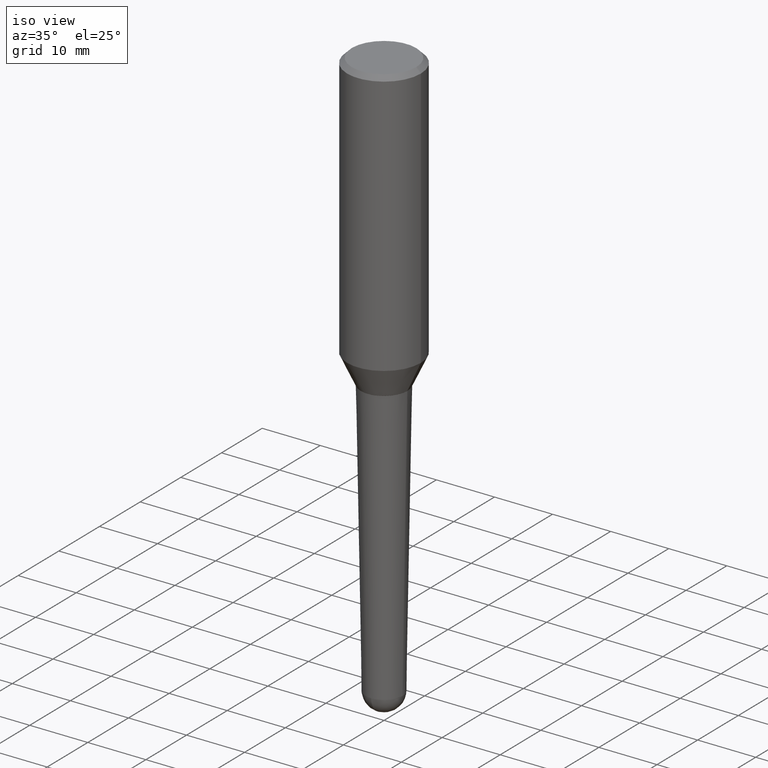
[diagram: clean part render]
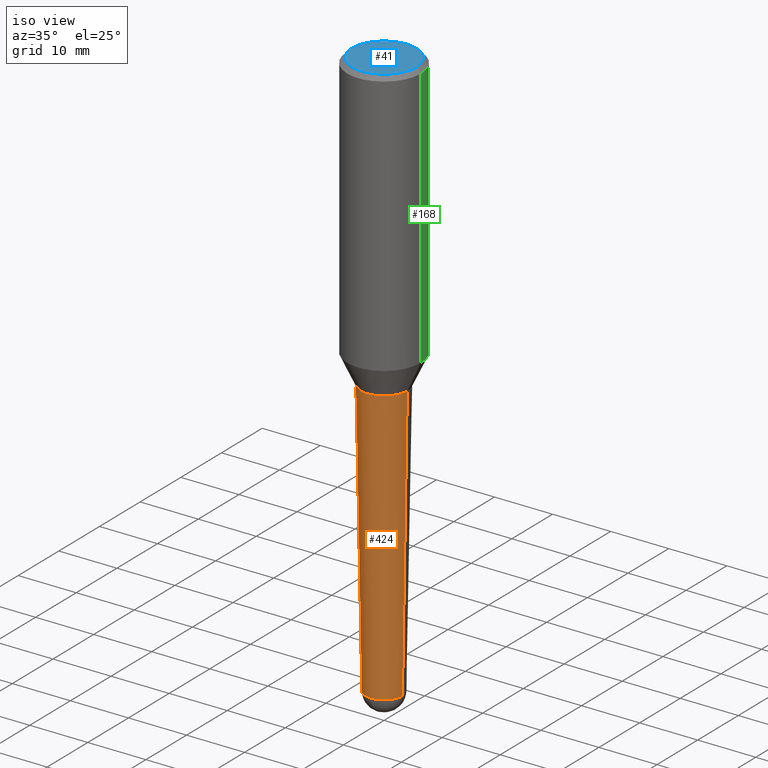
[diagram: same view with three faces highlighted in distinct colors, each labeled with its STEP entity id]
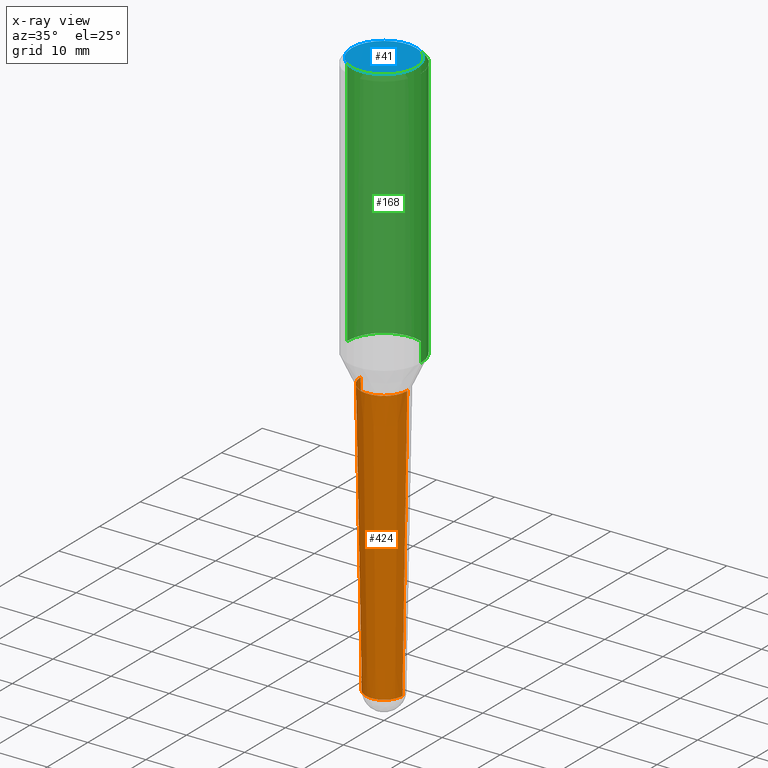
[diagram: x-ray of the same camera — body ghosted, the three highlighted faces saturated]
A machine part, iso view with three faces highlighted in distinct colors.
The next image is the same camera in x-ray (body ghosted, the three faces saturated) — at least one of them is partly hidden behind the body in this view.
Their STEP definitions:

[orange] entity #424 — the highlighted conical surface has half-angle 1 deg.
#3 = AXIS2_PLACEMENT_3D ( 'NONE', #275, #316, #350 ) ;
#17 = VERTEX_POINT ( 'NONE', #27 ) ;
#25 = EDGE_CURVE ( 'NONE', #215, #176, #270, .T. ) ;
#26 = ORIENTED_EDGE ( 'NONE', *, *, #389, .F. ) ;
#27 = CARTESIAN_POINT ( 'NONE',  ( -0.1249809618945493112, -9.255582334932912889E-15, -3.877181550804660759 ) ) ;
#36 = DIRECTION ( 'NONE',  ( 1.000000000000000000, -6.982962677686266711E-15, 0.000000000000000000 ) ) ;
#56 = FACE_OUTER_BOUND ( 'NONE', #343, .T. ) ;
#64 = CARTESIAN_POINT ( 'NONE',  ( -0.1577472877458967193, -5.862100783749240719E-15, -2.000000000000000000 ) ) ;
#69 = AXIS2_PLACEMENT_3D ( 'NONE', #384, #173, #388 ) ;
#77 = EDGE_CURVE ( 'NONE', #17, #215, #362, .T. ) ;
#85 = LINE ( 'NONE', #369, #207 ) ;
#93 = DIRECTION ( 'NONE',  ( 0.01745240643728343879, 3.369080066536508461E-15, 0.9998476951563912696 ) ) ;
#96 = DIRECTION ( 'NONE',  ( -2.445468806185136597E-29, 3.491481338843145583E-15, 1.000000000000000000 ) ) ;
#102 = CARTESIAN_POINT ( 'NONE',  ( 0.1249809618945493112, -1.440984442427236798E-14, -3.877181550804660759 ) ) ;
#106 = CONICAL_SURFACE ( 'NONE', #3, 0.1249809618945493112, 0.01745329251994322262 ) ;
#125 = ORIENTED_EDGE ( 'NONE', *, *, #379, .T. ) ;
#172 = ORIENTED_EDGE ( 'NONE', *, *, #77, .T. ) ;
#173 = DIRECTION ( 'NONE',  ( -2.445468806185136597E-29, 3.491481338843145583E-15, 1.000000000000000000 ) ) ;
#176 = VERTEX_POINT ( 'NONE', #297 ) ;
#188 = AXIS2_PLACEMENT_3D ( 'NONE', #262, #395, #36 ) ;
#202 = CIRCLE ( 'NONE', #457, 0.1577472877458967193 ) ;
#207 = VECTOR ( 'NONE', #370, 39.37007874015748143 ) ;
#215 = VERTEX_POINT ( 'NONE', #269 ) ;
#220 = ORIENTED_EDGE ( 'NONE', *, *, #25, .T. ) ;
#262 = CARTESIAN_POINT ( 'NONE',  ( 9.481526538409310003E-29, -1.353710703194140102E-14, -3.877181550804660759 ) ) ;
#269 = CARTESIAN_POINT ( 'NONE',  ( -8.880431458247209991E-16, -0.1249809618945623979, -3.877181550804660315 ) ) ;
#270 = CIRCLE ( 'NONE', #188, 0.1249809618945493112 ) ;
#275 = CARTESIAN_POINT ( 'NONE',  ( 9.481526538409310003E-29, -1.353710703194140102E-14, -3.877181550804660759 ) ) ;
#284 = DIRECTION ( 'NONE',  ( 1.000000000000000000, -6.982962677686264344E-15, 0.000000000000000000 ) ) ;
#295 = EDGE_CURVE ( 'NONE', #17, #354, #85, .T. ) ;
#297 = CARTESIAN_POINT ( 'NONE',  ( 0.1249809618945493112, -1.124717526239724726E-14, -3.877181550804660759 ) ) ;
#316 = DIRECTION ( 'NONE',  ( -2.445468806185136597E-29, 3.491481338843145583E-15, 1.000000000000000000 ) ) ;
#343 = EDGE_LOOP ( 'NONE', ( #391, #172, #220, #125, #26 ) ) ;
#347 = VERTEX_POINT ( 'NONE', #386 ) ;
#350 = DIRECTION ( 'NONE',  ( 1.000000000000000000, -6.982962677686266711E-15, 0.000000000000000000 ) ) ;
#354 = VERTEX_POINT ( 'NONE', #64 ) ;
#355 = VECTOR ( 'NONE', #93, 39.37007874015748143 ) ;
#362 = CIRCLE ( 'NONE', #69, 0.1249809618945493112 ) ;
#369 = CARTESIAN_POINT ( 'NONE',  ( -0.1249809618945493112, -1.264906388611658269E-14, -3.877181550804660759 ) ) ;
#370 = DIRECTION ( 'NONE',  ( -0.01745240643728343879, 3.614956375479315570E-15, 0.9998476951563912696 ) ) ;
#377 = CARTESIAN_POINT ( 'NONE',  ( 4.890937612370273194E-29, -6.982962677686291165E-15, -2.000000000000000000 ) ) ;
#379 = EDGE_CURVE ( 'NONE', #176, #347, #451, .T. ) ;
#384 = CARTESIAN_POINT ( 'NONE',  ( 9.481526538409310003E-29, -1.353710703194140102E-14, -3.877181550804660759 ) ) ;
#386 = CARTESIAN_POINT ( 'NONE',  ( 0.1577472877458967193, -8.084506100522123376E-15, -2.000000000000000000 ) ) ;
#388 = DIRECTION ( 'NONE',  ( 1.000000000000000000, -6.982962677686266711E-15, 0.000000000000000000 ) ) ;
#389 = EDGE_CURVE ( 'NONE', #354, #347, #202, .T. ) ;
#391 = ORIENTED_EDGE ( 'NONE', *, *, #295, .F. ) ;
#395 = DIRECTION ( 'NONE',  ( -2.445468806185136597E-29, 3.491481338843145583E-15, 1.000000000000000000 ) ) ;
#424 = ADVANCED_FACE ( 'NONE', ( #56 ), #106, .T. ) ;
#451 = LINE ( 'NONE', #102, #355 ) ;
#457 = AXIS2_PLACEMENT_3D ( 'NONE', #377, #96, #284 ) ;

[blue] entity #41 — the highlighted planar face has unit normal (0, -0, -1).
#19 = AXIS2_PLACEMENT_3D ( 'NONE', #75, #150, #429 ) ;
#41 = ADVANCED_FACE ( 'NONE', ( #111 ), #78, .F. ) ;
#75 = CARTESIAN_POINT ( 'NONE',  ( 5.007997871596688174E-45, -7.150093703678297452E-31, -2.047868228345560340E-16 ) ) ;
#78 = PLANE ( 'NONE',  #19 ) ;
#111 = FACE_OUTER_BOUND ( 'NONE', #241, .T. ) ;
#148 = CARTESIAN_POINT ( 'NONE',  ( -0.2187500000000001943, 1.582077481663294407E-15, -4.095736456691228655E-16 ) ) ;
#150 = DIRECTION ( 'NONE',  ( 2.438088387897960049E-29, -3.491481338843145188E-15, -1.000000000000000000 ) ) ;
#154 = CARTESIAN_POINT ( 'NONE',  ( 1.001599574319337510E-44, -1.430018740735659315E-30, -4.095736456691120187E-16 ) ) ;
#162 = VERTEX_POINT ( 'NONE', #148 ) ;
#169 = CARTESIAN_POINT ( 'NONE',  ( 1.001599574319337510E-44, -1.430018740735659315E-30, -4.095736456691120187E-16 ) ) ;
#171 = AXIS2_PLACEMENT_3D ( 'NONE', #154, #274, #403 ) ;
#177 = DIRECTION ( 'NONE',  ( -2.445468806185136597E-29, 3.491481338843145583E-15, 1.000000000000000000 ) ) ;
#241 = EDGE_LOOP ( 'NONE', ( #268, #342 ) ) ;
#252 = VERTEX_POINT ( 'NONE', #407 ) ;
#268 = ORIENTED_EDGE ( 'NONE', *, *, #282, .T. ) ;
#274 = DIRECTION ( 'NONE',  ( -2.445468806185136597E-29, 3.491481338843145583E-15, 1.000000000000000000 ) ) ;
#279 = DIRECTION ( 'NONE',  ( 1.000000000000000000, -6.982962677686266711E-15, 4.880466792705917960E-29 ) ) ;
#282 = EDGE_CURVE ( 'NONE', #162, #252, #319, .T. ) ;
#319 = CIRCLE ( 'NONE', #171, 0.2187500000000001943 ) ;
#342 = ORIENTED_EDGE ( 'NONE', *, *, #433, .T. ) ;
#403 = DIRECTION ( 'NONE',  ( 1.000000000000000000, -6.982962677686266711E-15, 4.880466792705917960E-29 ) ) ;
#407 = CARTESIAN_POINT ( 'NONE',  ( 0.2187500000000001943, -1.662483614147128444E-15, -4.095736456691008267E-16 ) ) ;
#429 = DIRECTION ( 'NONE',  ( -1.000000000000000000, 6.982962677686265922E-15, -4.876176775795935793E-29 ) ) ;
#433 = EDGE_CURVE ( 'NONE', #252, #162, #435, .T. ) ;
#435 = CIRCLE ( 'NONE', #442, 0.2187500000000001943 ) ;
#442 = AXIS2_PLACEMENT_3D ( 'NONE', #169, #177, #279 ) ;

[green] entity #168 — the highlighted cylindrical surface (partial cylindrical patch) has radius 6.35 mm, axis along (-0, 0, 1).
#9 = DIRECTION ( 'NONE',  ( 1.000000000000000000, -6.982962677686266711E-15, 4.852736867747363965E-29 ) ) ;
#16 = DIRECTION ( 'NONE',  ( -2.445468806185136877E-29, 3.491481338843145188E-15, 1.000000000000000000 ) ) ;
#28 = CARTESIAN_POINT ( 'NONE',  ( -0.2500000000000000000, -1.427178414605507168E-15, -0.03125000000000005551 ) ) ;
#43 = CARTESIAN_POINT ( 'NONE',  ( -0.2500000000000001110, 1.776356839400253226E-15, 5.931196827434174486E-16 ) ) ;
#45 = VECTOR ( 'NONE', #16, 39.37007874015748143 ) ;
#48 = DIRECTION ( 'NONE',  ( -2.445468806185136597E-29, 3.491481338843145583E-15, 1.000000000000000000 ) ) ;
#51 = CIRCLE ( 'NONE', #92, 0.2500000000000002220 ) ;
#59 = VERTEX_POINT ( 'NONE', #28 ) ;
#65 = FACE_OUTER_BOUND ( 'NONE', #142, .T. ) ;
#84 = CARTESIAN_POINT ( 'NONE',  ( 0.2500000000000001110, -1.745740669421565297E-15, 5.931196827434418047E-16 ) ) ;
#90 = ORIENTED_EDGE ( 'NONE', *, *, #193, .T. ) ;
#92 = AXIS2_PLACEMENT_3D ( 'NONE', #194, #48, #121 ) ;
#97 = DIRECTION ( 'NONE',  ( 1.000000000000000000, -6.982962677686266711E-15, 0.000000000000000000 ) ) ;
#118 = CARTESIAN_POINT ( 'NONE',  ( 0.2500000000000000000, -1.854849461260415384E-15, -0.03125000000000005551 ) ) ;
#121 = DIRECTION ( 'NONE',  ( 1.000000000000000000, -6.982962677686268288E-15, 0.000000000000000000 ) ) ;
#134 = DIRECTION ( 'NONE',  ( -2.445468806185136597E-29, 3.491481338843145583E-15, 1.000000000000000000 ) ) ;
#142 = EDGE_LOOP ( 'NONE', ( #273, #90, #456, #204 ) ) ;
#159 = EDGE_CURVE ( 'NONE', #196, #59, #277, .T. ) ;
#168 = ADVANCED_FACE ( 'NONE', ( #65 ), #329, .T. ) ;
#174 = CARTESIAN_POINT ( 'NONE',  ( 0.2500000000000002220, -8.043702385594237575E-15, -1.803807927055801397 ) ) ;
#191 = CARTESIAN_POINT ( 'NONE',  ( 7.642090019328565002E-31, -1.091087918388484967E-16, -0.03125000000000005551 ) ) ;
#193 = EDGE_CURVE ( 'NONE', #445, #59, #233, .T. ) ;
#194 = CARTESIAN_POINT ( 'NONE',  ( 4.411156017964436703E-29, -6.297961716172668531E-15, -1.803807927055801397 ) ) ;
#196 = VERTEX_POINT ( 'NONE', #118 ) ;
#204 = ORIENTED_EDGE ( 'NONE', *, *, #211, .F. ) ;
#211 = EDGE_CURVE ( 'NONE', #373, #196, #408, .T. ) ;
#222 = DIRECTION ( 'NONE',  ( -2.445468806185136597E-29, 3.491481338843145583E-15, 1.000000000000000000 ) ) ;
#230 = DIRECTION ( 'NONE',  ( -2.445468806185136877E-29, 3.491481338843145188E-15, 1.000000000000000000 ) ) ;
#232 = AXIS2_PLACEMENT_3D ( 'NONE', #314, #134, #9 ) ;
#233 = LINE ( 'NONE', #43, #45 ) ;
#242 = VECTOR ( 'NONE', #230, 39.37007874015748143 ) ;
#248 = EDGE_CURVE ( 'NONE', #373, #445, #51, .T. ) ;
#273 = ORIENTED_EDGE ( 'NONE', *, *, #248, .T. ) ;
#277 = CIRCLE ( 'NONE', #426, 0.2500000000000000000 ) ;
#314 = CARTESIAN_POINT ( 'NONE',  ( -1.450455682483482035E-44, 2.070866303999251778E-30, 5.931196827434296760E-16 ) ) ;
#329 = CYLINDRICAL_SURFACE ( 'NONE', #232, 0.2500000000000001110 ) ;
#373 = VERTEX_POINT ( 'NONE', #174 ) ;
#408 = LINE ( 'NONE', #84, #242 ) ;
#426 = AXIS2_PLACEMENT_3D ( 'NONE', #191, #222, #97 ) ;
#445 = VERTEX_POINT ( 'NONE', #447 ) ;
#447 = CARTESIAN_POINT ( 'NONE',  ( -0.2500000000000002220, -4.521604876772416489E-15, -1.803807927055801397 ) ) ;
#456 = ORIENTED_EDGE ( 'NONE', *, *, #159, .F. ) ;